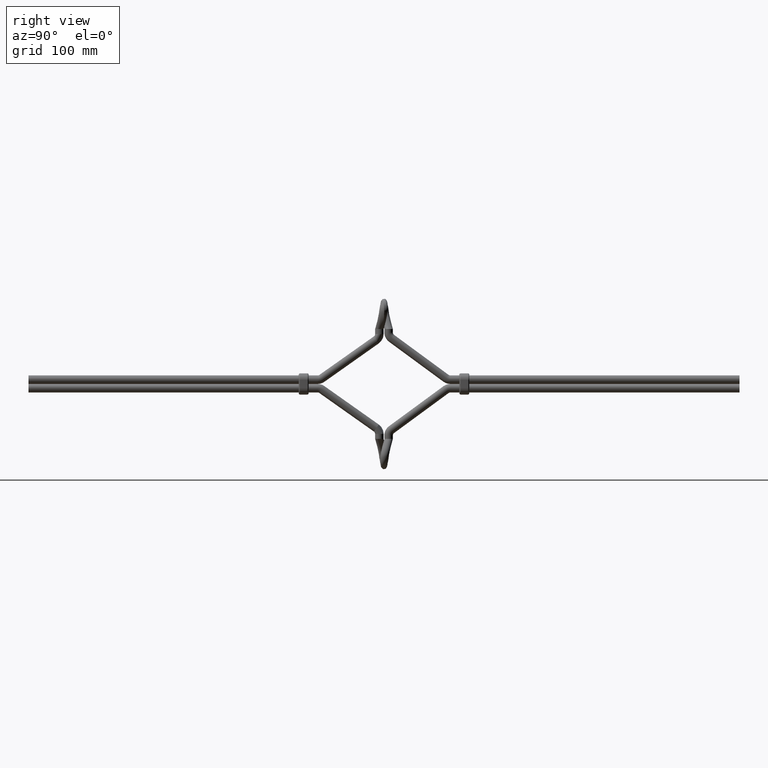
[diagram: clean part render]
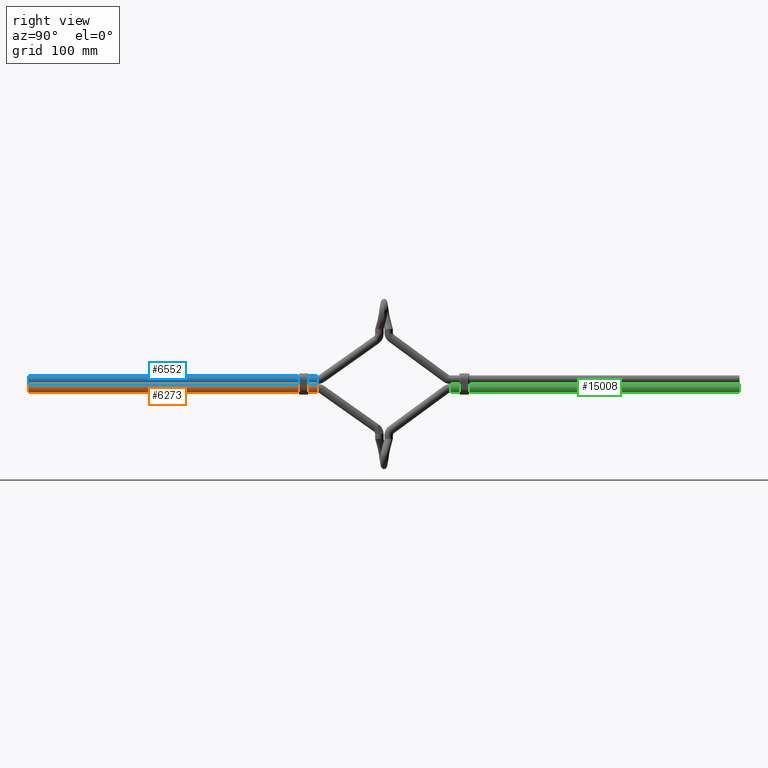
[diagram: same view with three faces highlighted in distinct colors, each labeled with its STEP entity id]
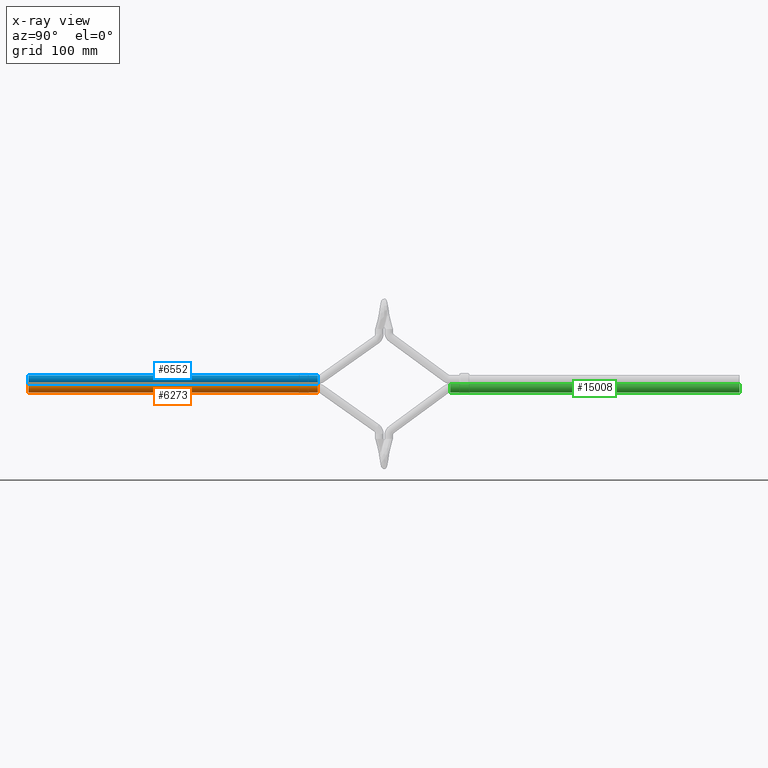
[diagram: x-ray of the same camera — body ghosted, the three highlighted faces saturated]
A machine part, right view with three faces highlighted in distinct colors.
The next image is the same camera in x-ray (body ghosted, the three faces saturated) — at least one of them is partly hidden behind the body in this view.
Their STEP definitions:

[orange] entity #6273 — the highlighted cylindrical surface (bore or boss wall) has radius 6 mm, axis along (0, -1, 0).
#878 = VERTEX_POINT ( 'NONE', #6519 ) ;
#1032 = AXIS2_PLACEMENT_3D ( 'NONE', #9798, #11306, #16465 ) ;
#2268 = CARTESIAN_POINT ( 'NONE',  ( 0.000000000000000000, -506.4999999999999432, -71.25000000000005684 ) ) ;
#2562 = EDGE_CURVE ( 'NONE', #9232, #9232, #3435, .T. ) ;
#2962 = CARTESIAN_POINT ( 'NONE',  ( 0.000000000000000000, -99.71999999999997044, -71.25000000000005684 ) ) ;
#3435 = CIRCLE ( 'NONE', #1032, 6.000000000000005329 ) ;
#5107 = DIRECTION ( 'NONE',  ( 0.000000000000000000, 1.000000000000000000, 0.000000000000000000 ) ) ;
#6273 = ADVANCED_FACE ( 'NONE', ( #13903, #11424 ), #10392, .T. ) ;
#6519 = CARTESIAN_POINT ( 'NONE',  ( 0.000000000000000000, -506.4999999999999432, -65.25000000000005684 ) ) ;
#7161 = DIRECTION ( 'NONE',  ( -0.000000000000000000, -1.000000000000000000, -0.000000000000000000 ) ) ;
#7346 = AXIS2_PLACEMENT_3D ( 'NONE', #2268, #5107, #15607 ) ;
#9232 = VERTEX_POINT ( 'NONE', #14454 ) ;
#9542 = EDGE_LOOP ( 'NONE', ( #11388 ) ) ;
#9605 = DIRECTION ( 'NONE',  ( 0.000000000000000000, 0.000000000000000000, -1.000000000000000000 ) ) ;
#9798 = CARTESIAN_POINT ( 'NONE',  ( 0.000000000000000000, -99.71999999999997044, -71.25000000000005684 ) ) ;
#10392 = CYLINDRICAL_SURFACE ( 'NONE', #12457, 6.000000000000005329 ) ;
#11306 = DIRECTION ( 'NONE',  ( 0.000000000000000000, 1.000000000000000000, 0.000000000000000000 ) ) ;
#11388 = ORIENTED_EDGE ( 'NONE', *, *, #12687, .T. ) ;
#11424 = FACE_OUTER_BOUND ( 'NONE', #9542, .T. ) ;
#12212 = ORIENTED_EDGE ( 'NONE', *, *, #2562, .F. ) ;
#12457 = AXIS2_PLACEMENT_3D ( 'NONE', #2962, #7161, #9605 ) ;
#12687 = EDGE_CURVE ( 'NONE', #878, #878, #15677, .T. ) ;
#13876 = EDGE_LOOP ( 'NONE', ( #12212 ) ) ;
#13903 = FACE_OUTER_BOUND ( 'NONE', #13876, .T. ) ;
#14454 = CARTESIAN_POINT ( 'NONE',  ( 0.000000000000000000, -99.71999999999997044, -65.25000000000005684 ) ) ;
#15607 = DIRECTION ( 'NONE',  ( 0.000000000000000000, 0.000000000000000000, 1.000000000000000000 ) ) ;
#15677 = CIRCLE ( 'NONE', #7346, 6.000000000000005329 ) ;
#16465 = DIRECTION ( 'NONE',  ( 0.000000000000000000, 0.000000000000000000, 1.000000000000000000 ) ) ;

[blue] entity #6552 — the highlighted cylindrical surface (bore or boss wall) has radius 6 mm, axis along (-0, -1, -0).
#609 = ORIENTED_EDGE ( 'NONE', *, *, #14124, .T. ) ;
#734 = DIRECTION ( 'NONE',  ( 0.000000000000000000, 1.000000000000000000, 0.000000000000000000 ) ) ;
#846 = CIRCLE ( 'NONE', #14233, 6.000000000000005329 ) ;
#1099 = DIRECTION ( 'NONE',  ( 0.000000000000000000, 1.000000000000000000, 0.000000000000000000 ) ) ;
#2523 = CARTESIAN_POINT ( 'NONE',  ( 0.000000000000000000, -506.4999999999999432, -65.25000000000005684 ) ) ;
#2663 = CYLINDRICAL_SURFACE ( 'NONE', #17234, 6.000000000000005329 ) ;
#2897 = CARTESIAN_POINT ( 'NONE',  ( 0.000000000000000000, -99.71999999999997044, -71.25000000000005684 ) ) ;
#3054 = AXIS2_PLACEMENT_3D ( 'NONE', #17121, #1099, #10662 ) ;
#3534 = CIRCLE ( 'NONE', #3054, 6.000000000000005329 ) ;
#4031 = EDGE_CURVE ( 'NONE', #13999, #13999, #3534, .T. ) ;
#4269 = DIRECTION ( 'NONE',  ( 0.000000000000000000, 0.000000000000000000, -1.000000000000000000 ) ) ;
#4742 = CARTESIAN_POINT ( 'NONE',  ( 0.000000000000000000, -506.4999999999999432, -71.25000000000005684 ) ) ;
#6552 = ADVANCED_FACE ( 'NONE', ( #14108, #16616 ), #2663, .T. ) ;
#6809 = ORIENTED_EDGE ( 'NONE', *, *, #4031, .F. ) ;
#7546 = EDGE_LOOP ( 'NONE', ( #6809 ) ) ;
#7955 = EDGE_LOOP ( 'NONE', ( #609 ) ) ;
#10662 = DIRECTION ( 'NONE',  ( 0.000000000000000000, 0.000000000000000000, 1.000000000000000000 ) ) ;
#12111 = DIRECTION ( 'NONE',  ( -0.000000000000000000, -1.000000000000000000, -0.000000000000000000 ) ) ;
#13999 = VERTEX_POINT ( 'NONE', #17263 ) ;
#14108 = FACE_OUTER_BOUND ( 'NONE', #7546, .T. ) ;
#14124 = EDGE_CURVE ( 'NONE', #14198, #14198, #846, .T. ) ;
#14198 = VERTEX_POINT ( 'NONE', #2523 ) ;
#14233 = AXIS2_PLACEMENT_3D ( 'NONE', #4742, #734, #15469 ) ;
#15469 = DIRECTION ( 'NONE',  ( 0.000000000000000000, 0.000000000000000000, 1.000000000000000000 ) ) ;
#16616 = FACE_OUTER_BOUND ( 'NONE', #7955, .T. ) ;
#17121 = CARTESIAN_POINT ( 'NONE',  ( 0.000000000000000000, -99.71999999999997044, -71.25000000000005684 ) ) ;
#17234 = AXIS2_PLACEMENT_3D ( 'NONE', #2897, #12111, #4269 ) ;
#17263 = CARTESIAN_POINT ( 'NONE',  ( 0.000000000000000000, -99.71999999999997044, -65.25000000000005684 ) ) ;

[green] entity #15008 — the highlighted cylindrical surface (bore or boss wall) has radius 6 mm, axis along (0, 1, -0).
#404 = CYLINDRICAL_SURFACE ( 'NONE', #8801, 6.000000000000005329 ) ;
#827 = FACE_OUTER_BOUND ( 'NONE', #11471, .T. ) ;
#958 = DIRECTION ( 'NONE',  ( 0.000000000000000000, 1.000000000000000000, 0.000000000000000000 ) ) ;
#2654 = CARTESIAN_POINT ( 'NONE',  ( 0.000000000000000000, 493.5000000000000000, -71.25000000000001421 ) ) ;
#2875 = DIRECTION ( 'NONE',  ( 0.000000000000000000, 0.000000000000000000, 1.000000000000000000 ) ) ;
#4755 = EDGE_CURVE ( 'NONE', #13590, #13590, #11000, .T. ) ;
#5313 = DIRECTION ( 'NONE',  ( 0.000000000000000000, 0.000000000000000000, 1.000000000000000000 ) ) ;
#5809 = EDGE_LOOP ( 'NONE', ( #12697 ) ) ;
#6249 = DIRECTION ( 'NONE',  ( 0.000000000000000000, 0.000000000000000000, 1.000000000000000000 ) ) ;
#6748 = VERTEX_POINT ( 'NONE', #9291 ) ;
#7508 = FACE_OUTER_BOUND ( 'NONE', #5809, .T. ) ;
#8004 = DIRECTION ( 'NONE',  ( -0.000000000000000000, 1.000000000000000000, 1.705813251307999775E-16 ) ) ;
#8801 = AXIS2_PLACEMENT_3D ( 'NONE', #10135, #8004, #2875 ) ;
#9134 = DIRECTION ( 'NONE',  ( 0.000000000000000000, 1.000000000000000000, 0.000000000000000000 ) ) ;
#9291 = CARTESIAN_POINT ( 'NONE',  ( 0.000000000000000000, 493.5000000000000000, -65.25000000000000000 ) ) ;
#9487 = CIRCLE ( 'NONE', #16212, 6.000000000000005329 ) ;
#9713 = EDGE_CURVE ( 'NONE', #6748, #6748, #9487, .T. ) ;
#10135 = CARTESIAN_POINT ( 'NONE',  ( 0.000000000000000000, 86.72077615550477958, -71.25000000000007105 ) ) ;
#10233 = CARTESIAN_POINT ( 'NONE',  ( 0.000000000000000000, 86.72077615550477958, -71.25000000000007105 ) ) ;
#11000 = CIRCLE ( 'NONE', #13751, 6.000000000000005329 ) ;
#11471 = EDGE_LOOP ( 'NONE', ( #15439 ) ) ;
#12697 = ORIENTED_EDGE ( 'NONE', *, *, #4755, .T. ) ;
#13590 = VERTEX_POINT ( 'NONE', #15964 ) ;
#13751 = AXIS2_PLACEMENT_3D ( 'NONE', #10233, #958, #6249 ) ;
#15008 = ADVANCED_FACE ( 'NONE', ( #7508, #827 ), #404, .T. ) ;
#15439 = ORIENTED_EDGE ( 'NONE', *, *, #9713, .F. ) ;
#15964 = CARTESIAN_POINT ( 'NONE',  ( 0.000000000000000000, 86.72077615550477958, -65.25000000000007105 ) ) ;
#16212 = AXIS2_PLACEMENT_3D ( 'NONE', #2654, #9134, #5313 ) ;